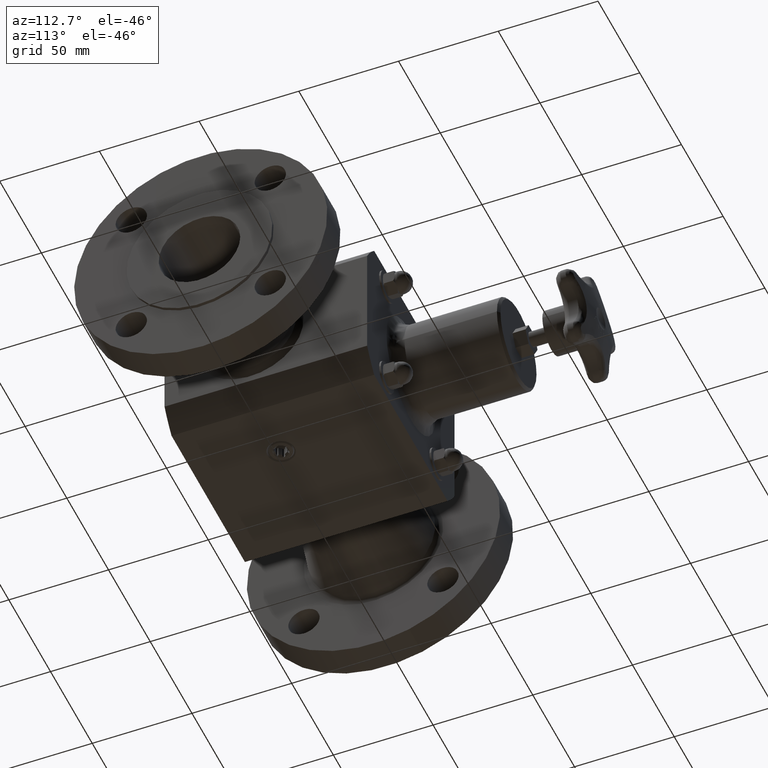
[diagram: clean part render]
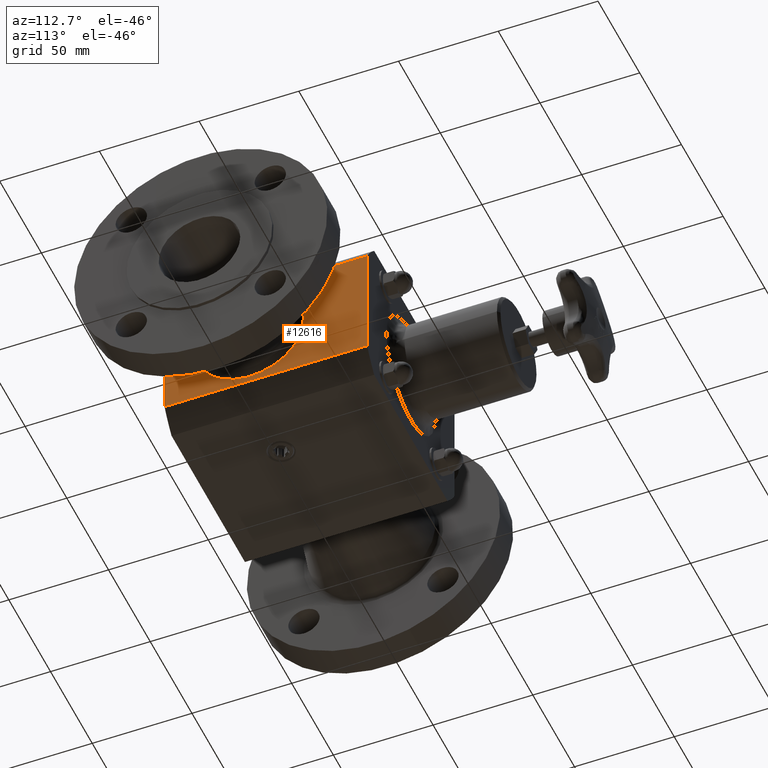
[diagram: same view with one face highlighted and labeled with its STEP entity id]
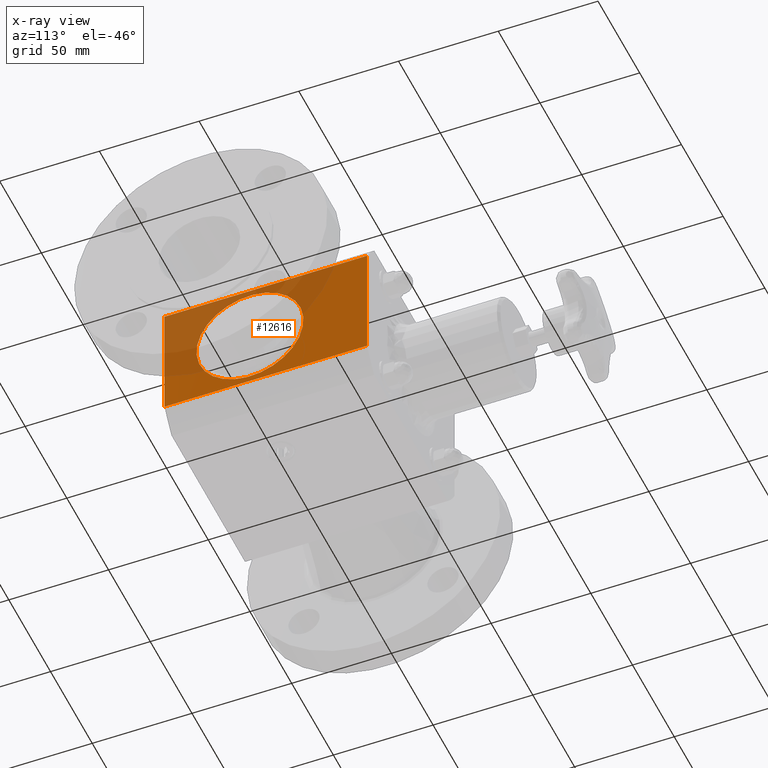
[diagram: x-ray of the same camera — body ghosted, the highlighted face saturated]
A machine part, auxiliary view. The second image highlights one B-rep face of the part: STEP entity #12616.
The next image is the same camera in x-ray: the body ghosted, the highlighted face saturated — about 37% of this face is hidden behind the body in this view.
In plain terms, the highlighted planar face has unit normal (1, 0, 0).
Its self-contained STEP definition (entity closure, byte-faithful):
#7419=CARTESIAN_POINT('',(2.062500000000000,1.984324331332766,1.013347756026597));
#7420=VERTEX_POINT('',#7419);
#7421=CARTESIAN_POINT('',(2.062500000000000,1.687000000000001,4.004460E-016));
#7422=DIRECTION('',(-1.0,0.0,0.0));
#7423=DIRECTION('',(0.0,0.0,-1.0));
#7424=AXIS2_PLACEMENT_3D('',#7421,#7422,#7423);
#7425=CIRCLE('',#7424,1.056066017181983);
#7426=EDGE_CURVE('',#7420,#7420,#7425,.T.);
#12410=CARTESIAN_POINT('',(2.062500000000000,4.680784E-016,1.177590230088548));
#12411=VERTEX_POINT('',#12410);
#12419=CARTESIAN_POINT('',(2.062499999999994,4.000000000000056,1.177590230088547));
#12420=VERTEX_POINT('',#12419);
#12421=CARTESIAN_POINT('',(2.062500000000000,4.680784E-016,1.177590230088548));
#12422=DIRECTION('',(0.0,1.0,0.0));
#12423=VECTOR('',#12422,4.000000000000055);
#12424=LINE('',#12421,#12423);
#12425=EDGE_CURVE('',#12411,#12420,#12424,.T.);
#12564=CARTESIAN_POINT('',(2.062500000000000,4.478556E-016,-1.177590230088547));
#12565=VERTEX_POINT('',#12564);
#12566=CARTESIAN_POINT('',(2.062499999999994,4.000000000000056,-1.177590230088550));
#12567=VERTEX_POINT('',#12566);
#12568=CARTESIAN_POINT('',(2.062500000000000,4.478556E-016,-1.177590230088547));
#12569=DIRECTION('',(0.0,1.0,0.0));
#12570=VECTOR('',#12569,4.000000000000055);
#12571=LINE('',#12568,#12570);
#12572=EDGE_CURVE('',#12565,#12567,#12571,.T.);
#12592=CARTESIAN_POINT('',(2.062500000000000,4.478556E-016,-1.177590230088547));
#12593=DIRECTION('',(1.0,0.0,0.0));
#12594=DIRECTION('',(0.0,0.0,-1.0));
#12595=AXIS2_PLACEMENT_3D('',#12592,#12593,#12594);
#12596=PLANE('',#12595);
#12597=ORIENTED_EDGE('',*,*,#12425,.F.);
#12598=CARTESIAN_POINT('',(2.062500000000000,4.478556E-016,-1.177590230088548));
#12599=DIRECTION('',(0.0,0.0,1.0));
#12600=VECTOR('',#12599,2.355180460177095);
#12601=LINE('',#12598,#12600);
#12602=EDGE_CURVE('',#12565,#12411,#12601,.T.);
#12603=ORIENTED_EDGE('',*,*,#12602,.F.);
#12604=ORIENTED_EDGE('',*,*,#12572,.T.);
#12605=CARTESIAN_POINT('',(2.062499999999995,4.000000000000056,-1.177590230088550));
#12606=DIRECTION('',(0.0,0.0,1.0));
#12607=VECTOR('',#12606,2.355180460177097);
#12608=LINE('',#12605,#12607);
#12609=EDGE_CURVE('',#12567,#12420,#12608,.T.);
#12610=ORIENTED_EDGE('',*,*,#12609,.T.);
#12611=EDGE_LOOP('',(#12597,#12603,#12604,#12610));
#12612=FACE_OUTER_BOUND('',#12611,.T.);
#12613=ORIENTED_EDGE('',*,*,#7426,.T.);
#12614=EDGE_LOOP('',(#12613));
#12615=FACE_BOUND('',#12614,.T.);
#12616=ADVANCED_FACE('',(#12612,#12615),#12596,.T.);